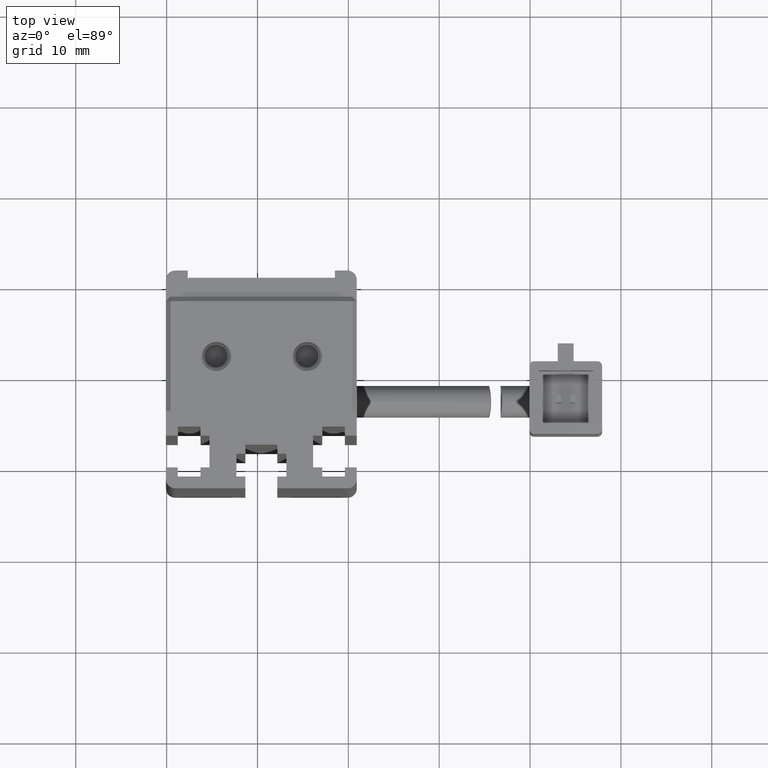
[diagram: clean part render]
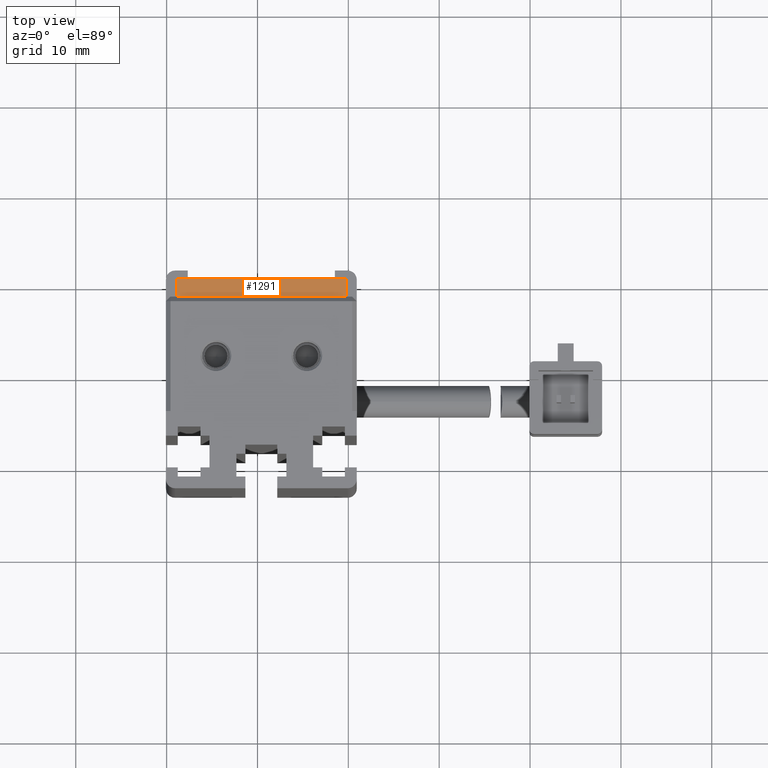
[diagram: same view with one face highlighted and labeled with its STEP entity id]
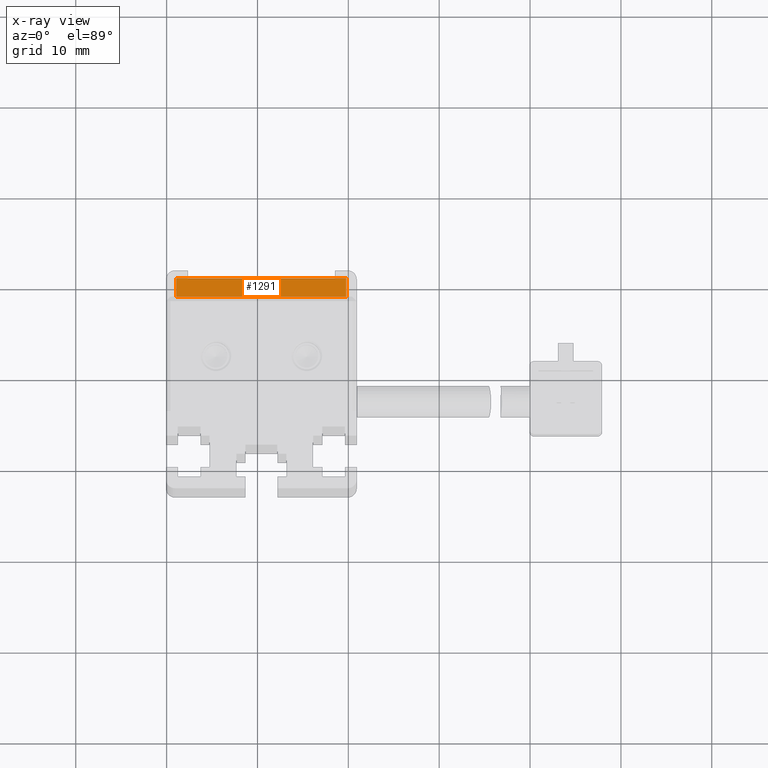
[diagram: x-ray of the same camera — body ghosted, the highlighted face saturated]
A machine part, top view. The second image highlights one B-rep face of the part: STEP entity #1291.
The next image is the same camera in x-ray: the body ghosted, the highlighted face saturated — about 0% of this face is hidden behind the body in this view.
In plain terms, the highlighted planar face has unit normal (-0, 0, -1).
Its self-contained STEP definition (entity closure, byte-faithful):
#1291 = ADVANCED_FACE ( 'NONE', ( #26772 ), #26605, .F. ) ;
#1611 = CARTESIAN_POINT ( 'NONE',  ( 39.77537974683543400, 30.18379746835443800, -86.00000000000001400 ) ) ;
#2042 = CARTESIAN_POINT ( 'NONE',  ( 39.77537974683543400, 30.18379746835443800, -86.00000000000001400 ) ) ;
#3371 = AXIS2_PLACEMENT_3D ( 'NONE', #19822, #8859, #26308 ) ;
#3874 = LINE ( 'NONE', #10932, #12100 ) ;
#4775 = EDGE_LOOP ( 'NONE', ( #9229, #13312, #20702, #24018 ) ) ;
#4837 = LINE ( 'NONE', #27036, #27613 ) ;
#6976 = VECTOR ( 'NONE', #14619, 1000.000000000000000 ) ;
#7671 = VERTEX_POINT ( 'NONE', #2042 ) ;
#8859 = DIRECTION ( 'NONE',  ( -1.548860246407863500E-017, 0.0000000000000000000, -1.000000000000000000 ) ) ;
#9229 = ORIENTED_EDGE ( 'NONE', *, *, #12844, .F. ) ;
#10196 = CARTESIAN_POINT ( 'NONE',  ( 21.07537974683543100, 30.18379746835443800, -86.00000000000001400 ) ) ;
#10932 = CARTESIAN_POINT ( 'NONE',  ( 21.07537974683543100, 30.18379746835443800, -86.00000000000001400 ) ) ;
#11483 = LINE ( 'NONE', #10196, #24633 ) ;
#12100 = VECTOR ( 'NONE', #26591, 1000.000000000000000 ) ;
#12414 = DIRECTION ( 'NONE',  ( 1.000000000000000000, 0.0000000000000000000, -1.548860246407863500E-017 ) ) ;
#12844 = EDGE_CURVE ( 'NONE', #7671, #22626, #18683, .T. ) ;
#13312 = ORIENTED_EDGE ( 'NONE', *, *, #16361, .F. ) ;
#14619 = DIRECTION ( 'NONE',  ( -0.0000000000000000000, -1.000000000000000000, -0.0000000000000000000 ) ) ;
#15771 = CARTESIAN_POINT ( 'NONE',  ( 21.07537974683543100, 30.18379746835443800, -86.00000000000001400 ) ) ;
#16361 = EDGE_CURVE ( 'NONE', #26574, #7671, #11483, .T. ) ;
#17138 = EDGE_CURVE ( 'NONE', #25502, #26574, #3874, .T. ) ;
#17691 = CARTESIAN_POINT ( 'NONE',  ( 21.07537974683543100, 28.18379746835443500, -86.00000000000001400 ) ) ;
#18421 = DIRECTION ( 'NONE',  ( 1.000000000000000000, 0.0000000000000000000, -1.548860246407863500E-017 ) ) ;
#18683 = LINE ( 'NONE', #1611, #6976 ) ;
#19692 = EDGE_CURVE ( 'NONE', #25502, #22626, #4837, .T. ) ;
#19822 = CARTESIAN_POINT ( 'NONE',  ( 21.07537974683543100, 30.18379746835443800, -86.00000000000001400 ) ) ;
#20702 = ORIENTED_EDGE ( 'NONE', *, *, #17138, .F. ) ;
#22626 = VERTEX_POINT ( 'NONE', #27770 ) ;
#24018 = ORIENTED_EDGE ( 'NONE', *, *, #19692, .T. ) ;
#24633 = VECTOR ( 'NONE', #12414, 1000.000000000000000 ) ;
#25502 = VERTEX_POINT ( 'NONE', #17691 ) ;
#26308 = DIRECTION ( 'NONE',  ( 0.0000000000000000000, 1.000000000000000000, 0.0000000000000000000 ) ) ;
#26574 = VERTEX_POINT ( 'NONE', #15771 ) ;
#26591 = DIRECTION ( 'NONE',  ( 0.0000000000000000000, 1.000000000000000000, 0.0000000000000000000 ) ) ;
#26605 = PLANE ( 'NONE',  #3371 ) ;
#26772 = FACE_OUTER_BOUND ( 'NONE', #4775, .T. ) ;
#27036 = CARTESIAN_POINT ( 'NONE',  ( 39.77537974683543400, 28.18379746835443500, -86.00000000000001400 ) ) ;
#27613 = VECTOR ( 'NONE', #18421, 1000.000000000000000 ) ;
#27770 = CARTESIAN_POINT ( 'NONE',  ( 39.77537974683543400, 28.18379746835443500, -86.00000000000001400 ) ) ;